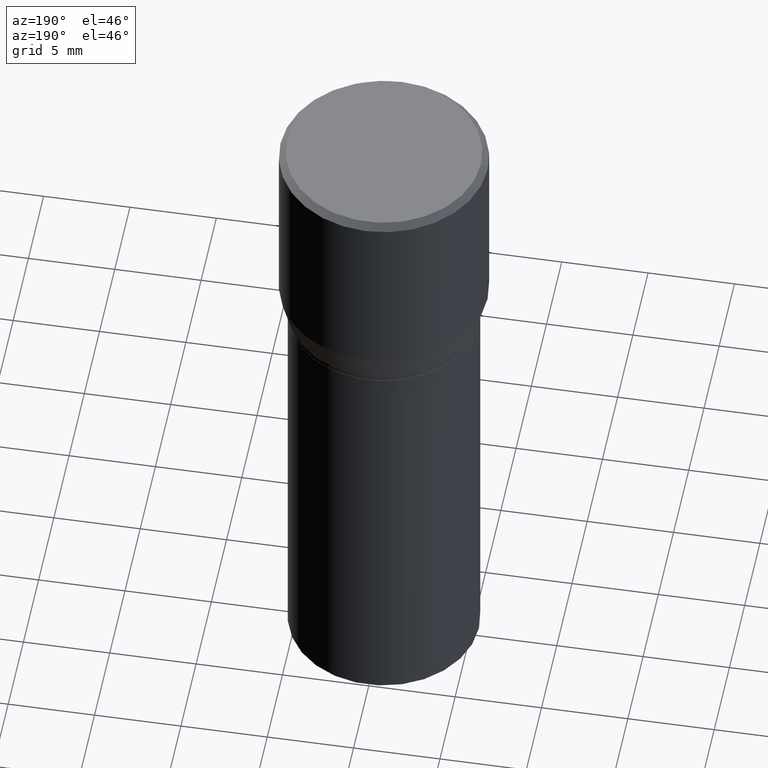
[diagram: clean part render]
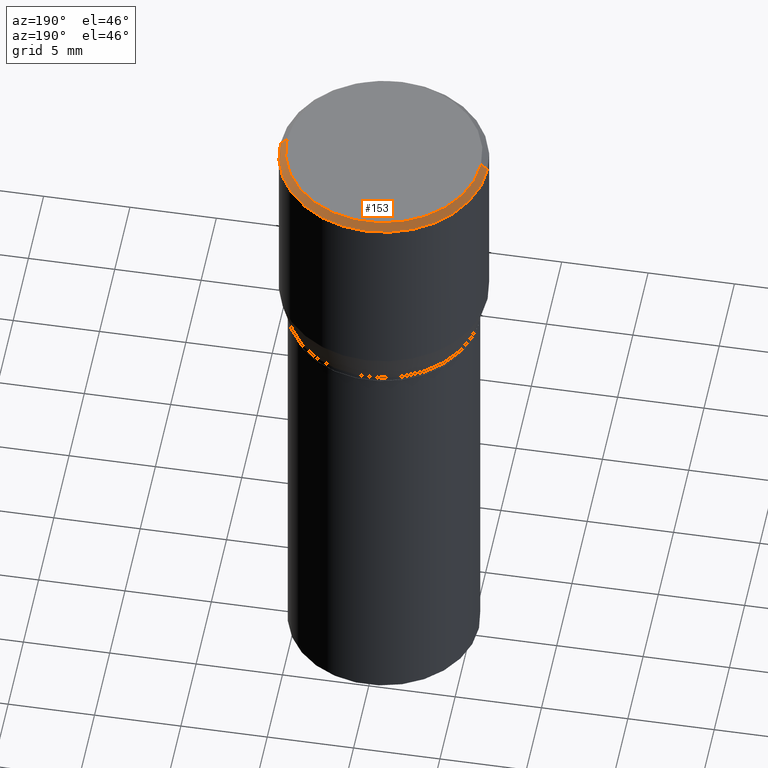
[diagram: same view with one face highlighted and labeled with its STEP entity id]
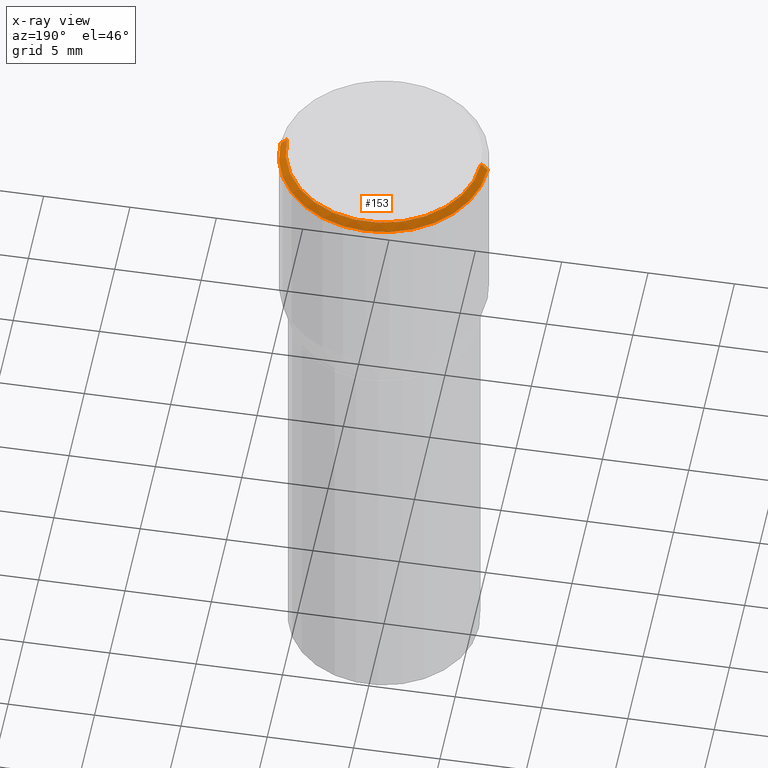
[diagram: x-ray of the same camera — body ghosted, the highlighted face saturated]
A machine part, auxiliary view. The second image highlights one B-rep face of the part: STEP entity #153.
The next image is the same camera in x-ray: the body ghosted, the highlighted face saturated — about 0% of this face is hidden behind the body in this view.
In plain terms, the highlighted conical surface has half-angle 45 deg.
Its self-contained STEP definition (entity closure, byte-faithful):
#12 = CIRCLE ( 'NONE', #280, 0.2361999999999999933 ) ;
#24 = CIRCLE ( 'NONE', #228, 0.2212000000000000077 ) ;
#25 = LINE ( 'NONE', #410, #366 ) ;
#32 = CONICAL_SURFACE ( 'NONE', #77, 0.2361999999999999933, 0.7853981633974459475 ) ;
#39 = DIRECTION ( 'NONE',  ( 2.445468806185136597E-29, -3.491481338843145583E-15, -1.000000000000000000 ) ) ;
#47 = VERTEX_POINT ( 'NONE', #94 ) ;
#64 = ORIENTED_EDGE ( 'NONE', *, *, #337, .F. ) ;
#71 = DIRECTION ( 'NONE',  ( 0.7071067811865459074, -7.319954787623251312E-15, -0.7071067811865492381 ) ) ;
#77 = AXIS2_PLACEMENT_3D ( 'NONE', #238, #39, #200 ) ;
#86 = DIRECTION ( 'NONE',  ( -2.445468806185136597E-29, 3.491481338843145583E-15, 1.000000000000000000 ) ) ;
#94 = CARTESIAN_POINT ( 'NONE',  ( -0.2212000000000000077, 1.570817454345525709E-15, 4.701447564591266586E-17 ) ) ;
#105 = DIRECTION ( 'NONE',  ( -2.445468806185136597E-29, 3.491481338843145583E-15, 1.000000000000000000 ) ) ;
#125 = EDGE_CURVE ( 'NONE', #253, #426, #172, .T. ) ;
#128 = ORIENTED_EDGE ( 'NONE', *, *, #125, .T. ) ;
#153 = ADVANCED_FACE ( 'NONE', ( #393 ), #32, .T. ) ;
#172 = LINE ( 'NONE', #312, #329 ) ;
#200 = DIRECTION ( 'NONE',  ( -1.000000000000000000, 6.982962677686266711E-15, 0.000000000000000000 ) ) ;
#201 = CARTESIAN_POINT ( 'NONE',  ( 0.2361999999999999933, -1.701748004552143407E-15, -0.01499999999999999944 ) ) ;
#228 = AXIS2_PLACEMENT_3D ( 'NONE', #256, #86, #298 ) ;
#238 = CARTESIAN_POINT ( 'NONE',  ( 3.668203209277705088E-31, -5.237222008264718399E-17, -0.01499999999999999944 ) ) ;
#245 = CARTESIAN_POINT ( 'NONE',  ( 0.2212000000000000077, -1.595182002131672613E-15, 4.701447564593453826E-17 ) ) ;
#253 = VERTEX_POINT ( 'NONE', #245 ) ;
#256 = CARTESIAN_POINT ( 'NONE',  ( -1.149724336312568861E-45, 1.641501643732376549E-31, 4.701447564592356200E-17 ) ) ;
#267 = DIRECTION ( 'NONE',  ( -0.7071067811865459074, 2.468850131082239706E-15, -0.7071067811865492381 ) ) ;
#280 = AXIS2_PLACEMENT_3D ( 'NONE', #434, #105, #367 ) ;
#298 = DIRECTION ( 'NONE',  ( 1.000000000000000000, -6.982962677686267499E-15, 4.877828720335458505E-29 ) ) ;
#304 = EDGE_CURVE ( 'NONE', #253, #47, #24, .T. ) ;
#312 = CARTESIAN_POINT ( 'NONE',  ( 0.2361999999999999933, -1.672821847156282947E-15, -0.01499999999999999944 ) ) ;
#317 = VERTEX_POINT ( 'NONE', #413 ) ;
#329 = VECTOR ( 'NONE', #71, 39.37007874015748143 ) ;
#337 = EDGE_CURVE ( 'NONE', #47, #317, #25, .T. ) ;
#366 = VECTOR ( 'NONE', #267, 39.37007874015748143 ) ;
#367 = DIRECTION ( 'NONE',  ( 1.000000000000000000, -6.982962677686266711E-15, 0.000000000000000000 ) ) ;
#386 = ORIENTED_EDGE ( 'NONE', *, *, #425, .T. ) ;
#391 = ORIENTED_EDGE ( 'NONE', *, *, #304, .F. ) ;
#393 = FACE_OUTER_BOUND ( 'NONE', #435, .T. ) ;
#410 = CARTESIAN_POINT ( 'NONE',  ( -0.2361999999999999933, 1.597003564386848854E-15, -0.01499999999999999944 ) ) ;
#413 = CARTESIAN_POINT ( 'NONE',  ( -0.2361999999999999933, 8.973183152936629998E-16, -0.01499999999999999944 ) ) ;
#425 = EDGE_CURVE ( 'NONE', #426, #317, #12, .T. ) ;
#426 = VERTEX_POINT ( 'NONE', #201 ) ;
#434 = CARTESIAN_POINT ( 'NONE',  ( 3.668203209277705088E-31, -5.237222008264718399E-17, -0.01499999999999999944 ) ) ;
#435 = EDGE_LOOP ( 'NONE', ( #391, #128, #386, #64 ) ) ;